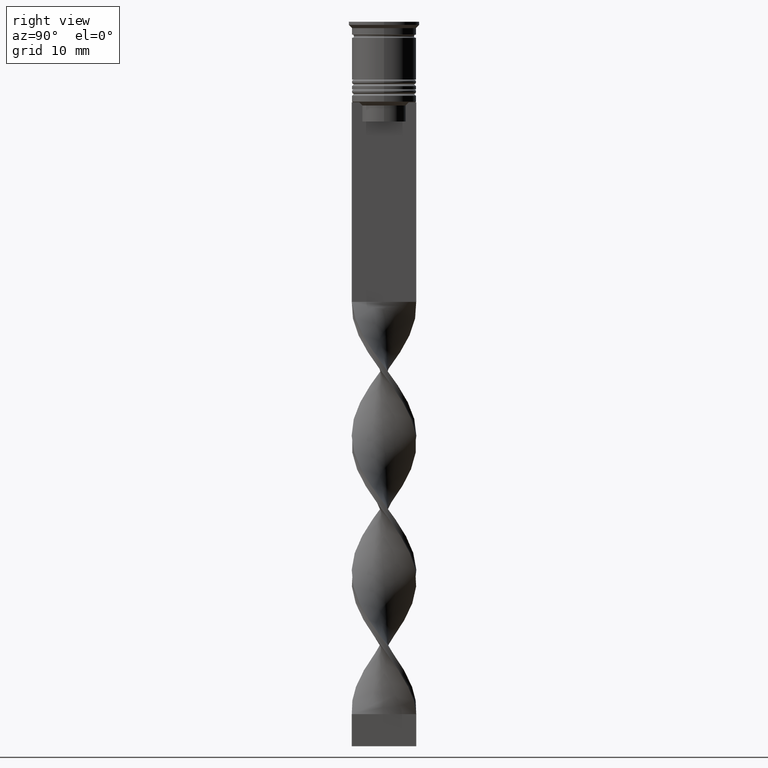
[diagram: clean part render]
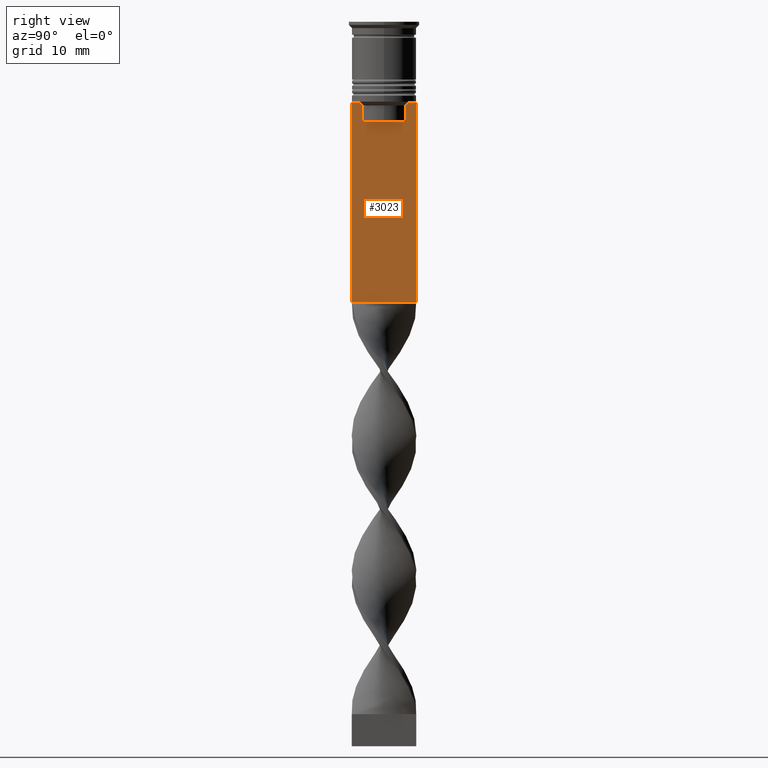
[diagram: same view with one face highlighted and labeled with its STEP entity id]
A machine part, right view. The second image highlights one B-rep face of the part: STEP entity #3023.
In plain terms, the highlighted planar face has unit normal (-1, 0, 0).
Its self-contained STEP definition (entity closure, byte-faithful):
#135 = CARTESIAN_POINT ( 'NONE',  ( 0.5000000000000000000, -3.363034344160045208, -13.00000000000000178 ) ) ;
#186 = DIRECTION ( 'NONE',  ( 0.000000000000000000, 0.000000000000000000, -1.000000000000000000 ) ) ;
#208 = VERTEX_POINT ( 'NONE', #756 ) ;
#220 = PLANE ( 'NONE',  #1750 ) ;
#224 = EDGE_CURVE ( 'NONE', #2328, #208, #1252, .T. ) ;
#251 = LINE ( 'NONE', #811, #2593 ) ;
#258 = ORIENTED_EDGE ( 'NONE', *, *, #3050, .T. ) ;
#272 = EDGE_CURVE ( 'NONE', #1556, #3673, #2990, .T. ) ;
#309 = CARTESIAN_POINT ( 'NONE',  ( 0.5000000000000000000, -4.999999999999999112, -12.50000000000000000 ) ) ;
#344 = CARTESIAN_POINT ( 'NONE',  ( 0.5000000000000000000, 3.699657965831574913, -12.66677026074361301 ) ) ;
#436 = DIRECTION ( 'NONE',  ( 0.000000000000000000, 1.000000000000000000, 0.000000000000000000 ) ) ;
#443 = LINE ( 'NONE', #3646, #3087 ) ;
#452 = ORIENTED_EDGE ( 'NONE', *, *, #1964, .T. ) ;
#468 = LINE ( 'NONE', #1891, #1237 ) ;
#494 = CARTESIAN_POINT ( 'NONE',  ( 0.5000000000000000000, -3.363034344160045208, 0.000000000000000000 ) ) ;
#622 = VERTEX_POINT ( 'NONE', #1910 ) ;
#647 = EDGE_CURVE ( 'NONE', #3099, #1689, #468, .T. ) ;
#723 = CARTESIAN_POINT ( 'NONE',  ( 0.5000000000000000000, 3.363034344160045652, -15.50000000000000000 ) ) ;
#730 = LINE ( 'NONE', #1644, #3618 ) ;
#732 = EDGE_CURVE ( 'NONE', #1516, #1556, #730, .T. ) ;
#738 = CARTESIAN_POINT ( 'NONE',  ( 0.5000000000000000000, -3.867815921162742754, -12.50000000000000000 ) ) ;
#747 = LINE ( 'NONE', #1329, #1761 ) ;
#756 = CARTESIAN_POINT ( 'NONE',  ( 0.5000000000000000000, -3.867815921162742754, -12.50000000000000000 ) ) ;
#780 = DIRECTION ( 'NONE',  ( 0.000000000000000000, -1.000000000000000000, 0.000000000000000000 ) ) ;
#811 = CARTESIAN_POINT ( 'NONE',  ( 0.5000000000000000000, -4.999999999999999112, -12.50000000000000000 ) ) ;
#823 = VECTOR ( 'NONE', #2119, 1000.000000000000000 ) ;
#835 = DIRECTION ( 'NONE',  ( 0.000000000000000000, 0.000000000000000000, -1.000000000000000000 ) ) ;
#844 = CARTESIAN_POINT ( 'NONE',  ( 0.5000000000000000000, -3.363034344160045208, -13.00000000000000178 ) ) ;
#852 = EDGE_CURVE ( 'NONE', #622, #1516, #251, .T. ) ;
#1026 = DIRECTION ( 'NONE',  ( 0.000000000000000000, -1.000000000000000000, 0.000000000000000000 ) ) ;
#1079 = ORIENTED_EDGE ( 'NONE', *, *, #272, .T. ) ;
#1090 = DIRECTION ( 'NONE',  ( -1.000000000000000000, 0.000000000000000000, 0.000000000000000000 ) ) ;
#1098 = VERTEX_POINT ( 'NONE', #723 ) ;
#1152 = CARTESIAN_POINT ( 'NONE',  ( 0.5000000000000000000, -3.363034344160045652, -15.50000000000000000 ) ) ;
#1237 = VECTOR ( 'NONE', #1026, 1000.000000000000000 ) ;
#1252 = B_SPLINE_CURVE_WITH_KNOTS ( 'NONE', 3,
 ( #135, #3292, #1296, #738 ),
 .UNSPECIFIED., .F., .F.,
 ( 4, 4 ),
 ( 0.01632394437298965648, 0.01703543518243618576 ),
 .UNSPECIFIED. ) ;
#1296 = CARTESIAN_POINT ( 'NONE',  ( 0.5000000000000000000, -3.699658232838647365, -12.66676999593996555 ) ) ;
#1329 = CARTESIAN_POINT ( 'NONE',  ( 0.5000000000000000000, -4.999999999999999112, -12.50000000000000000 ) ) ;
#1362 = CARTESIAN_POINT ( 'NONE',  ( 0.5000000000000000000, -4.999999999999999112, -2.450124378879110054 ) ) ;
#1391 = DIRECTION ( 'NONE',  ( 0.000000000000000000, -1.000000000000000000, 0.000000000000000000 ) ) ;
#1449 = CARTESIAN_POINT ( 'NONE',  ( 0.5000000000000000000, 3.363034344160045208, 0.000000000000000000 ) ) ;
#1450 = EDGE_CURVE ( 'NONE', #2988, #1098, #2307, .T. ) ;
#1516 = VERTEX_POINT ( 'NONE', #309 ) ;
#1556 = VERTEX_POINT ( 'NONE', #2864 ) ;
#1563 = CARTESIAN_POINT ( 'NONE',  ( 0.5000000000000000000, -4.999999999999999112, -43.50000000000000000 ) ) ;
#1590 = VERTEX_POINT ( 'NONE', #1152 ) ;
#1609 = VECTOR ( 'NONE', #835, 1000.000000000000000 ) ;
#1622 = DIRECTION ( 'NONE',  ( -0.000000000000000000, -0.000000000000000000, 1.000000000000000000 ) ) ;
#1625 = EDGE_CURVE ( 'NONE', #3617, #3673, #443, .T. ) ;
#1644 = CARTESIAN_POINT ( 'NONE',  ( 0.5000000000000000000, -4.999999999999999112, -2.450124378879110054 ) ) ;
#1650 = VECTOR ( 'NONE', #1622, 1000.000000000000000 ) ;
#1689 = VERTEX_POINT ( 'NONE', #1908 ) ;
#1750 = AXIS2_PLACEMENT_3D ( 'NONE', #1362, #1090, #2493 ) ;
#1761 = VECTOR ( 'NONE', #780, 1000.000000000000000 ) ;
#1805 = LINE ( 'NONE', #3519, #823 ) ;
#1807 = CARTESIAN_POINT ( 'NONE',  ( 0.5000000000000000000, 3.531412678228260216, -12.83345231756357840 ) ) ;
#1891 = CARTESIAN_POINT ( 'NONE',  ( 0.5000000000000000000, -4.999999999999999112, -12.50000000000000000 ) ) ;
#1908 = CARTESIAN_POINT ( 'NONE',  ( 0.5000000000000000000, 3.867815921162742754, -12.50000000000000000 ) ) ;
#1910 = CARTESIAN_POINT ( 'NONE',  ( 0.5000000000000000000, -4.874423042781575788, -12.50000000000000000 ) ) ;
#1931 = CARTESIAN_POINT ( 'NONE',  ( 0.5000000000000000000, 5.000000000000000888, -43.50000000000000000 ) ) ;
#1960 = ORIENTED_EDGE ( 'NONE', *, *, #852, .T. ) ;
#1964 = EDGE_CURVE ( 'NONE', #3617, #3099, #1805, .T. ) ;
#1996 = VECTOR ( 'NONE', #3107, 1000.000000000000000 ) ;
#2060 = CARTESIAN_POINT ( 'NONE',  ( 0.5000000000000000000, 3.363034344160045208, -13.00000000000000178 ) ) ;
#2062 = ORIENTED_EDGE ( 'NONE', *, *, #224, .T. ) ;
#2094 = ORIENTED_EDGE ( 'NONE', *, *, #3230, .T. ) ;
#2119 = DIRECTION ( 'NONE',  ( 0.000000000000000000, -1.000000000000000000, 0.000000000000000000 ) ) ;
#2307 = LINE ( 'NONE', #1449, #1609 ) ;
#2328 = VERTEX_POINT ( 'NONE', #844 ) ;
#2338 = ORIENTED_EDGE ( 'NONE', *, *, #1450, .T. ) ;
#2409 = ORIENTED_EDGE ( 'NONE', *, *, #1625, .F. ) ;
#2451 = EDGE_LOOP ( 'NONE', ( #2650, #2094, #2338, #258, #3515, #2062, #2583, #1960, #2552, #1079, #2409, #452 ) ) ;
#2493 = DIRECTION ( 'NONE',  ( 0.000000000000000000, 0.000000000000000000, 1.000000000000000000 ) ) ;
#2536 = VECTOR ( 'NONE', #436, 1000.000000000000000 ) ;
#2552 = ORIENTED_EDGE ( 'NONE', *, *, #732, .T. ) ;
#2583 = ORIENTED_EDGE ( 'NONE', *, *, #2871, .T. ) ;
#2593 = VECTOR ( 'NONE', #1391, 1000.000000000000000 ) ;
#2650 = ORIENTED_EDGE ( 'NONE', *, *, #647, .T. ) ;
#2766 = CARTESIAN_POINT ( 'NONE',  ( 0.5000000000000000000, 5.000000000000000888, -12.50000000000000000 ) ) ;
#2864 = CARTESIAN_POINT ( 'NONE',  ( 0.5000000000000000000, -4.999999999999999112, -43.50000000000000000 ) ) ;
#2871 = EDGE_CURVE ( 'NONE', #208, #622, #747, .T. ) ;
#2876 = CARTESIAN_POINT ( 'NONE',  ( 0.5000000000000000000, 3.399999999999998135, -15.50000000000000000 ) ) ;
#2988 = VERTEX_POINT ( 'NONE', #3019 ) ;
#2990 = LINE ( 'NONE', #1563, #2536 ) ;
#3019 = CARTESIAN_POINT ( 'NONE',  ( 0.5000000000000000000, 3.363034344160045208, -13.00000000000000178 ) ) ;
#3023 = ADVANCED_FACE ( 'NONE', ( #3648 ), #220, .F. ) ;
#3050 = EDGE_CURVE ( 'NONE', #1098, #1590, #3159, .T. ) ;
#3087 = VECTOR ( 'NONE', #3352, 1000.000000000000000 ) ;
#3099 = VERTEX_POINT ( 'NONE', #3688 ) ;
#3107 = DIRECTION ( 'NONE',  ( 0.000000000000000000, -1.000000000000000000, 0.000000000000000000 ) ) ;
#3159 = LINE ( 'NONE', #2876, #1996 ) ;
#3217 = CARTESIAN_POINT ( 'NONE',  ( 0.5000000000000000000, 3.867815921162742754, -12.50000000000000000 ) ) ;
#3230 = EDGE_CURVE ( 'NONE', #1689, #2988, #3681, .T. ) ;
#3292 = CARTESIAN_POINT ( 'NONE',  ( 0.5000000000000000000, -3.531412985305424801, -12.83345201382502765 ) ) ;
#3352 = DIRECTION ( 'NONE',  ( 0.000000000000000000, 0.000000000000000000, -1.000000000000000000 ) ) ;
#3515 = ORIENTED_EDGE ( 'NONE', *, *, #3574, .T. ) ;
#3519 = CARTESIAN_POINT ( 'NONE',  ( 0.5000000000000000000, -4.999999999999999112, -12.50000000000000000 ) ) ;
#3574 = EDGE_CURVE ( 'NONE', #1590, #2328, #3640, .T. ) ;
#3617 = VERTEX_POINT ( 'NONE', #2766 ) ;
#3618 = VECTOR ( 'NONE', #186, 1000.000000000000000 ) ;
#3640 = LINE ( 'NONE', #494, #1650 ) ;
#3646 = CARTESIAN_POINT ( 'NONE',  ( 0.5000000000000000000, 5.000000000000000888, -2.450124378879110054 ) ) ;
#3648 = FACE_OUTER_BOUND ( 'NONE', #2451, .T. ) ;
#3673 = VERTEX_POINT ( 'NONE', #1931 ) ;
#3681 = B_SPLINE_CURVE_WITH_KNOTS ( 'NONE', 3,
 ( #3217, #344, #1807, #2060 ),
 .UNSPECIFIED., .F., .F.,
 ( 4, 4 ),
 ( 0.006644825462451552783, 0.007355321358912435097 ),
 .UNSPECIFIED. ) ;
#3688 = CARTESIAN_POINT ( 'NONE',  ( 0.5000000000000000000, 4.874423042781575788, -12.50000000000000000 ) ) ;